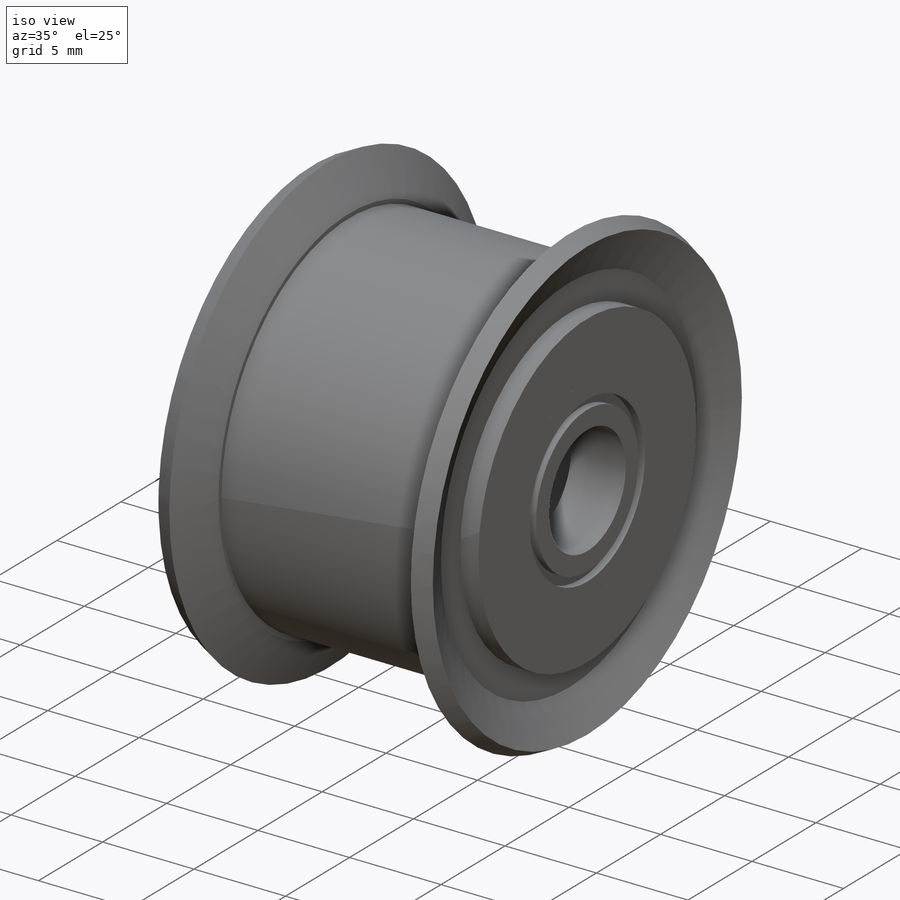
[diagram: iso view]
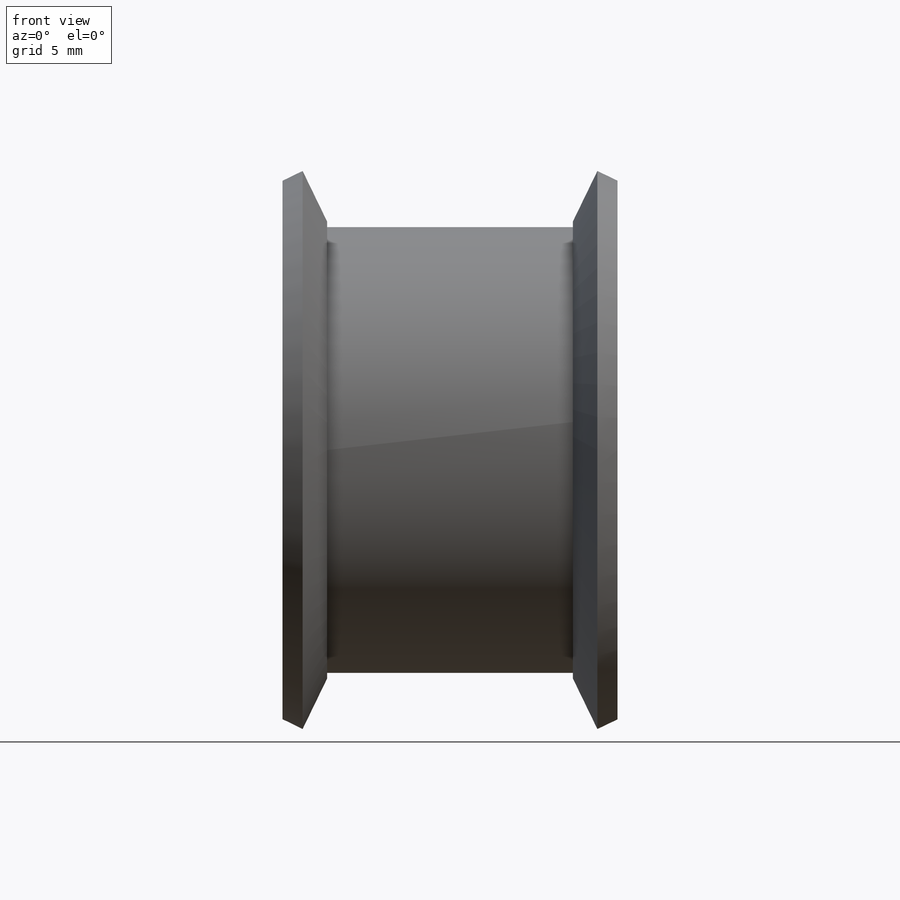
[diagram: front view]
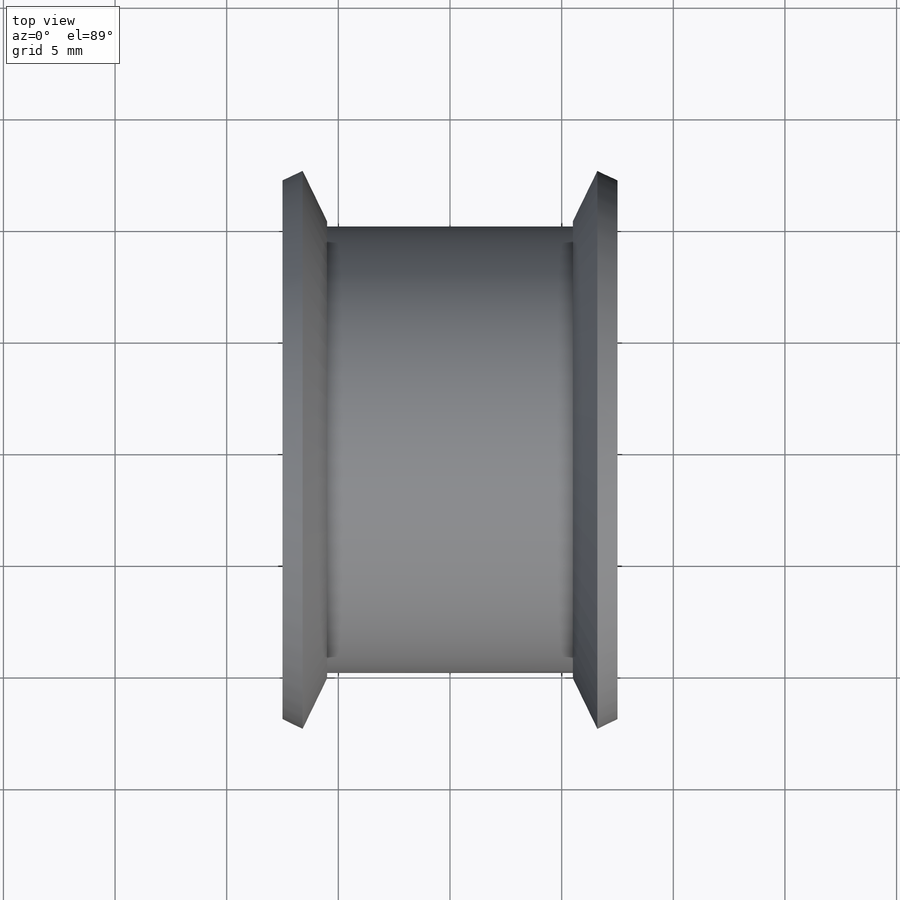
[diagram: top view]
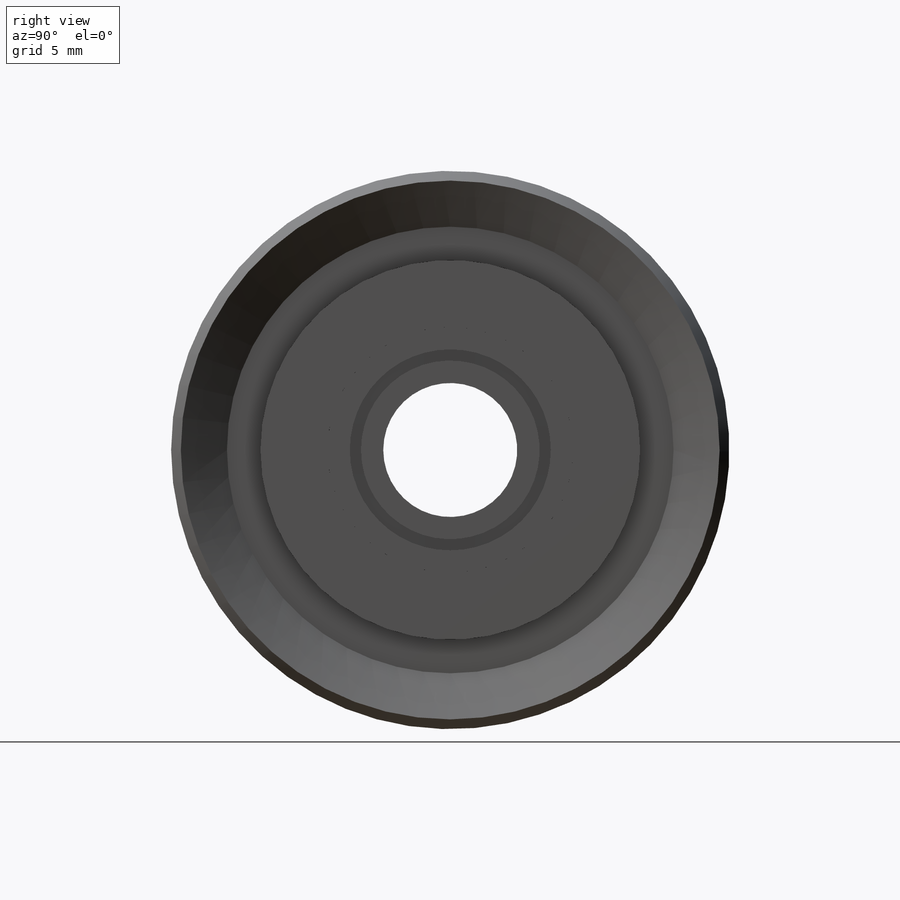
[diagram: right view]
SOLIDWORKS PART (.sldprt)
format: sldprt  version: not decoded by parser v0  size: 343,552 bytes
history: native  units: mm
features: sketch x3, revolve x3, material x1 (+16 scaffold rows collapsed)
feature tree (23):
  scaffold x16  (default folders/planes/origin — collapsed)
  material  "1060 Alloy"
  sketch  "Sketch1"  dims[D1=10.0mm D2=11.0mm D3=20.0mm D4=17.0mm D5=11.0mm D6=15.0mm D7=3.0mm]
  revolve  "Revolve1"  Angle=360deg
  sketch  "Sketch2"  dims[D1=25.0mm D2=1.0mm]
  revolve  "Revolve2"  Angle=360deg
  sketch  "Sketch3"  dims[D1=6.0mm D2=3.0mm D3=0.5mm D4=0.4mm]
  revolve  "Revolve3"  Angle=360deg
decode coverage: 6 of 6 modeling features carry decoded parameters
note: suppression state not decoded; provenance and decode notes live in map.json
